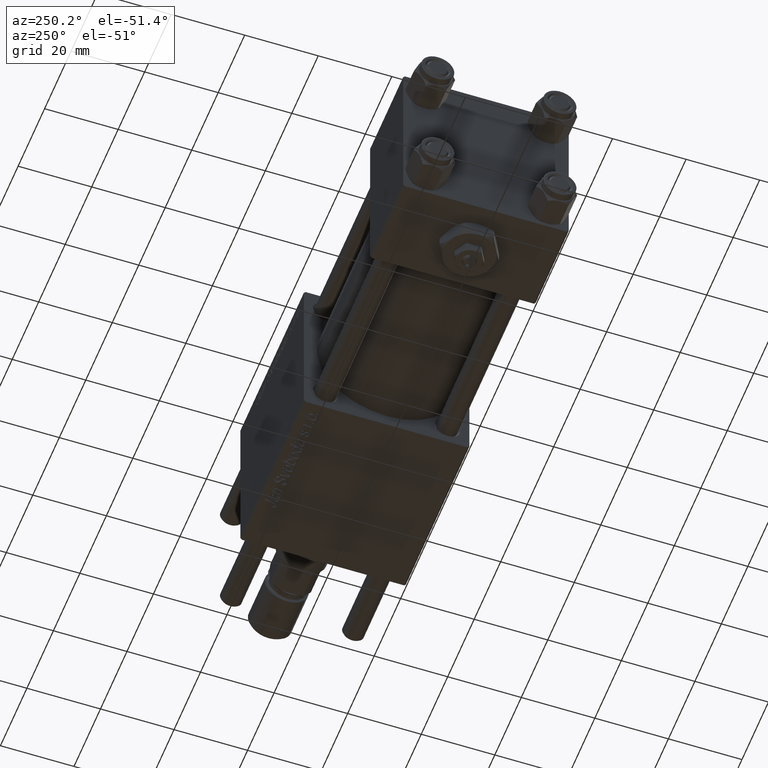
[diagram: clean part render]
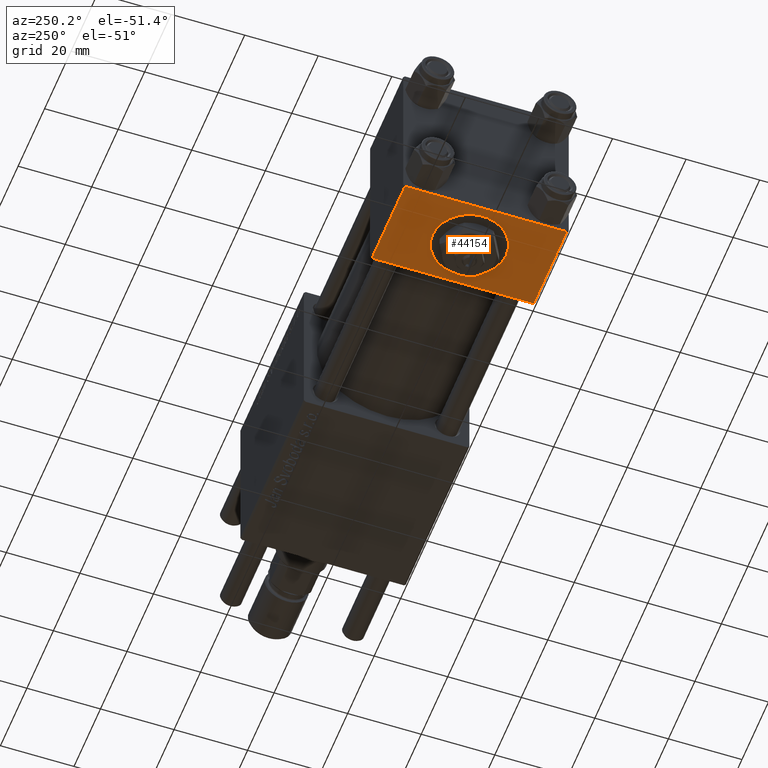
[diagram: same view with one face highlighted and labeled with its STEP entity id]
A machine part, auxiliary view. The second image highlights one B-rep face of the part: STEP entity #44154.
In plain terms, the highlighted planar face has unit normal (0, 0, -1).
Its self-contained STEP definition (entity closure, byte-faithful):
#421 = DIRECTION ( 'NONE',  ( 0.000000000000000000, -1.734723475976806848E-16, -1.000000000000000000 ) ) ;
#1255 = DIRECTION ( 'NONE',  ( 0.000000000000000000, -1.734723475976806848E-16, -1.000000000000000000 ) ) ;
#2130 = CARTESIAN_POINT ( 'NONE',  ( 25.00000000000000000, 22.50000000000000000, -22.49999999999999645 ) ) ;
#3643 = LINE ( 'NONE', #39449, #30539 ) ;
#7321 = EDGE_CURVE ( 'NONE', #54347, #49401, #3643, .T. ) ;
#7377 = CARTESIAN_POINT ( 'NONE',  ( 12.50000000000000178, 10.00000000000000533, -22.50000000000000000 ) ) ;
#7507 = CARTESIAN_POINT ( 'NONE',  ( 0.000000000000000000, -21.99999999999997158, -22.50000000000000711 ) ) ;
#8948 = VERTEX_POINT ( 'NONE', #7507 ) ;
#10799 = FACE_OUTER_BOUND ( 'NONE', #57124, .T. ) ;
#11254 = VERTEX_POINT ( 'NONE', #7377 ) ;
#12317 = DIRECTION ( 'NONE',  ( 1.000000000000000000, 0.000000000000000000, 0.000000000000000000 ) ) ;
#12747 = CARTESIAN_POINT ( 'NONE',  ( 0.000000000000000000, -21.99999999999998579, -22.50000000000000711 ) ) ;
#14525 = ORIENTED_EDGE ( 'NONE', *, *, #53701, .F. ) ;
#14890 = ORIENTED_EDGE ( 'NONE', *, *, #21616, .T. ) ;
#15200 = DIRECTION ( 'NONE',  ( 0.000000000000000000, -1.000000000000000000, -2.312964634635742957E-16 ) ) ;
#15772 = CARTESIAN_POINT ( 'NONE',  ( 0.000000000000000000, 21.99999999999999289, -22.49999999999999645 ) ) ;
#17717 = CARTESIAN_POINT ( 'NONE',  ( 25.00000000000000000, -21.99999999999997158, -22.50000000000000711 ) ) ;
#20345 = FACE_BOUND ( 'NONE', #34754, .T. ) ;
#21529 = DIRECTION ( 'NONE',  ( 0.000000000000000000, -1.000000000000000000, -2.312964634635742957E-16 ) ) ;
#21616 = EDGE_CURVE ( 'NONE', #49401, #59051, #31679, .T. ) ;
#21625 = VECTOR ( 'NONE', #26460, 1000.000000000000000 ) ;
#22156 = CARTESIAN_POINT ( 'NONE',  ( 12.50000000000000178, 3.566060716959379104E-15, -22.50000000000000000 ) ) ;
#25789 = VECTOR ( 'NONE', #15200, 1000.000000000000000 ) ;
#26460 = DIRECTION ( 'NONE',  ( -1.000000000000000000, 0.000000000000000000, 0.000000000000000000 ) ) ;
#26906 = CARTESIAN_POINT ( 'NONE',  ( 25.00000000000000000, 22.50000000000000000, -22.49999999999999645 ) ) ;
#27832 = ORIENTED_EDGE ( 'NONE', *, *, #50348, .F. ) ;
#27930 = EDGE_CURVE ( 'NONE', #56540, #11254, #29140, .T. ) ;
#29140 = CIRCLE ( 'NONE', #49107, 10.00000000000000178 ) ;
#30539 = VECTOR ( 'NONE', #12317, 1000.000000000000000 ) ;
#31679 = LINE ( 'NONE', #26906, #34675 ) ;
#33514 = AXIS2_PLACEMENT_3D ( 'NONE', #33517, #421, #51699 ) ;
#33517 = CARTESIAN_POINT ( 'NONE',  ( 12.50000000000000178, 3.566060716959379104E-15, -22.50000000000000000 ) ) ;
#34675 = VECTOR ( 'NONE', #21529, 1000.000000000000000 ) ;
#34754 = EDGE_LOOP ( 'NONE', ( #14525, #57662 ) ) ;
#34816 = EDGE_CURVE ( 'NONE', #59051, #8948, #43468, .T. ) ;
#36526 = ORIENTED_EDGE ( 'NONE', *, *, #7321, .T. ) ;
#37851 = LINE ( 'NONE', #56050, #25789 ) ;
#38810 = DIRECTION ( 'NONE',  ( 0.000000000000000000, 2.312964634635742957E-16, -1.000000000000000000 ) ) ;
#39449 = CARTESIAN_POINT ( 'NONE',  ( 25.00000000000000000, 21.99999999999999289, -22.49999999999999645 ) ) ;
#40035 = CIRCLE ( 'NONE', #33514, 10.00000000000000178 ) ;
#42408 = PLANE ( 'NONE',  #56086 ) ;
#43468 = LINE ( 'NONE', #12747, #21625 ) ;
#44154 = ADVANCED_FACE ( 'NONE', ( #20345, #10799 ), #42408, .T. ) ;
#44747 = CARTESIAN_POINT ( 'NONE',  ( 12.50000000000000355, -9.999999999999998224, -22.50000000000000000 ) ) ;
#49107 = AXIS2_PLACEMENT_3D ( 'NONE', #22156, #1255, #51360 ) ;
#49401 = VERTEX_POINT ( 'NONE', #51845 ) ;
#50348 = EDGE_CURVE ( 'NONE', #54347, #8948, #37851, .T. ) ;
#51360 = DIRECTION ( 'NONE',  ( 0.000000000000000000, 1.000000000000000000, 0.000000000000000000 ) ) ;
#51699 = DIRECTION ( 'NONE',  ( 0.000000000000000000, 1.000000000000000000, 0.000000000000000000 ) ) ;
#51845 = CARTESIAN_POINT ( 'NONE',  ( 25.00000000000000000, 21.99999999999999289, -22.49999999999999645 ) ) ;
#53701 = EDGE_CURVE ( 'NONE', #11254, #56540, #40035, .T. ) ;
#54347 = VERTEX_POINT ( 'NONE', #15772 ) ;
#55243 = ORIENTED_EDGE ( 'NONE', *, *, #34816, .T. ) ;
#55853 = DIRECTION ( 'NONE',  ( 0.000000000000000000, 1.000000000000000000, 2.312964634635742957E-16 ) ) ;
#56050 = CARTESIAN_POINT ( 'NONE',  ( 0.000000000000000000, 22.50000000000000000, -22.49999999999999645 ) ) ;
#56086 = AXIS2_PLACEMENT_3D ( 'NONE', #2130, #38810, #55853 ) ;
#56540 = VERTEX_POINT ( 'NONE', #44747 ) ;
#57124 = EDGE_LOOP ( 'NONE', ( #27832, #36526, #14890, #55243 ) ) ;
#57662 = ORIENTED_EDGE ( 'NONE', *, *, #27930, .F. ) ;
#59051 = VERTEX_POINT ( 'NONE', #17717 ) ;